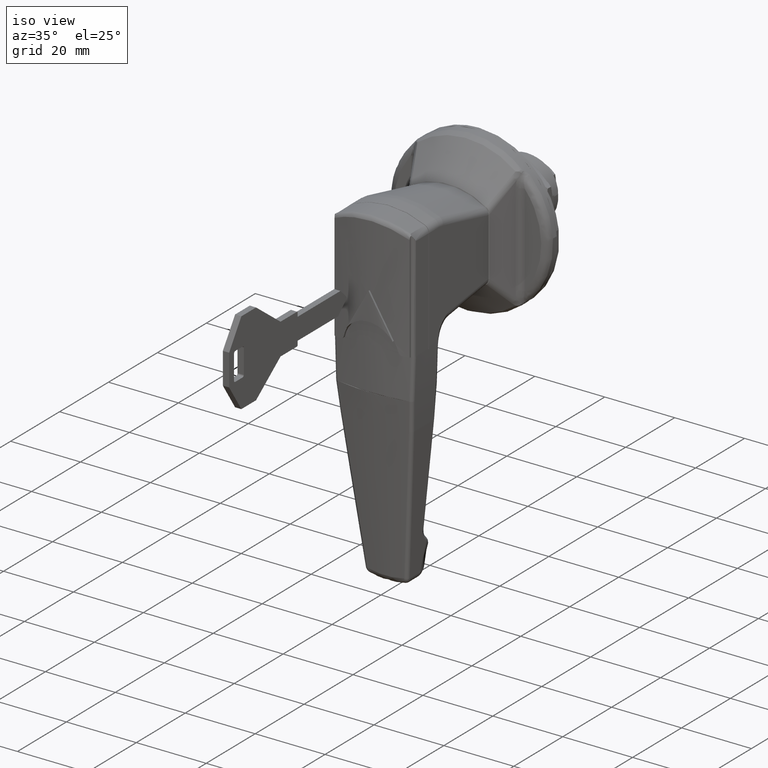
[diagram: clean part render]
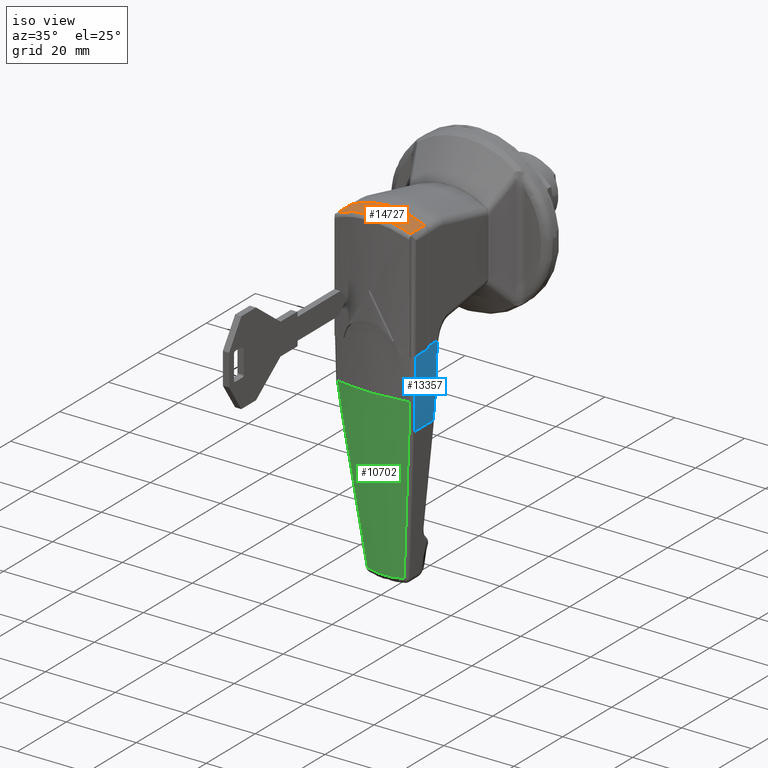
[diagram: same view with three faces highlighted in distinct colors, each labeled with its STEP entity id]
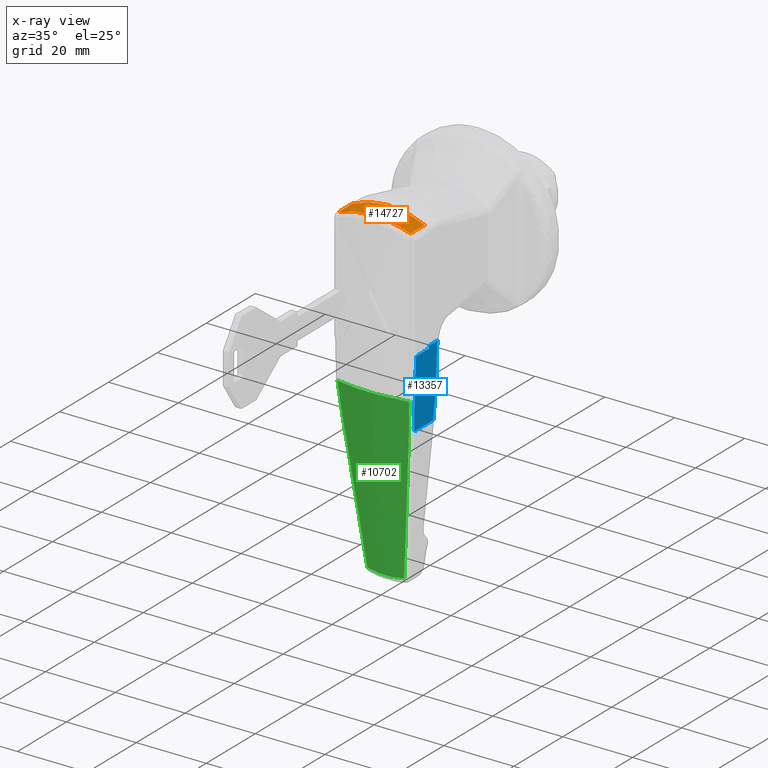
[diagram: x-ray of the same camera — body ghosted, the three highlighted faces saturated]
A machine part, iso view with three faces highlighted in distinct colors.
The next image is the same camera in x-ray (body ghosted, the three faces saturated) — at least one of them is partly hidden behind the body in this view.
Their STEP definitions:

[orange] entity #14727 — the highlighted face is a freeform B-spline surface patch.
#13914=CARTESIAN_POINT('',(-42.665228107918949,10.363636292673020,14.647056215411800));
#13915=VERTEX_POINT('',#13914);
#14001=CARTESIAN_POINT('',(-42.665228107688051,-10.363636357722740,14.647056351284499));
#14002=VERTEX_POINT('',#14001);
#14016=CARTESIAN_POINT('',(-42.665228107918949,10.363636292673020,14.647056215411780));
#14017=CARTESIAN_POINT('',(-42.796096962083098,9.557011230146461,15.033231993281669));
#14018=CARTESIAN_POINT('',(-42.913761288571763,8.734930248536616,15.371572125689131));
#14019=CARTESIAN_POINT('',(-43.119575944880047,7.060287476895181,15.955142921909861));
#14020=CARTESIAN_POINT('',(-43.207735024776682,6.207724823062814,16.200367558185469));
#14021=CARTESIAN_POINT('',(-43.315459357698543,4.905525507268409,16.497532744439120));
#14022=CARTESIAN_POINT('',(-43.347280300663130,4.467558159067115,16.584781314712270));
#14023=CARTESIAN_POINT('',(-43.388560136737318,3.804614229315083,16.697577027155361));
#14024=CARTESIAN_POINT('',(-43.401244620117751,3.582633520411606,16.732160837213460));
#14025=CARTESIAN_POINT('',(-43.424406388240470,3.136642360627634,16.795213712981479));
#14026=CARTESIAN_POINT('',(-43.434893245583083,2.912332395886084,16.823708681706311));
#14027=CARTESIAN_POINT('',(-43.481395581174922,1.792754220779051,16.949915191138668));
#14028=CARTESIAN_POINT('',(-43.499900732128282,0.899028342212307,16.999732033031911));
#14029=CARTESIAN_POINT('',(-43.500098471655747,-0.884663947616848,17.000265817636802));
#14030=CARTESIAN_POINT('',(-43.481789877846488,-1.774630083290208,16.950974940475369));
#14031=CARTESIAN_POINT('',(-43.426989658006491,-3.106747978893304,16.802263445491860));
#14032=CARTESIAN_POINT('',(-43.404165121402947,-3.550314419307753,16.740201842186710));
#14033=CARTESIAN_POINT('',(-43.363112662337187,-4.214944255388948,16.628049515774610));
#14034=CARTESIAN_POINT('',(-43.348281407087264,-4.436519988955471,16.587456431212889));
#14035=CARTESIAN_POINT('',(-43.316396976862791,-4.878772631451303,16.499965704599848));
#14036=CARTESIAN_POINT('',(-43.299393981306480,-5.098777501835253,16.453205722575252));
#14037=CARTESIAN_POINT('',(-43.209226271936117,-6.193273262757894,16.204517171257969));
#14038=CARTESIAN_POINT('',(-43.120616144240472,-7.051228946870860,15.958070939316499));
#14039=CARTESIAN_POINT('',(-42.914067115049711,-8.733032769073853,15.372460516674529));
#14040=CARTESIAN_POINT('',(-42.796118356716690,-9.556879362003587,15.033295125878981));
#14041=CARTESIAN_POINT('',(-42.665228107688051,-10.363636357722740,14.647056351284499));
#14042=B_SPLINE_CURVE_WITH_KNOTS('',3,(#14016,#14017,#14018,#14019,#14020,#14021,#14022,#14023,#14024,#14025,#14026,#14027,#14028,#14029,#14030,#14031,#14032,#14033,#14034,#14035,#14036,#14037,#14038,#14039,#14040,#14041),.UNSPECIFIED.,.F.,.U.,(4,2,2,2,2,2,2,2,2,2,2,2,4),(0.0,0.125000000000000,0.250000000000001,0.312500000000001,0.343750000000001,0.375000000000001,0.500000000000000,0.625000000000000,0.687500000000000,0.718750000000000,0.750000000000000,0.875000000000000,1.0),.UNSPECIFIED.);
#14043=EDGE_CURVE('',#13915,#14002,#14042,.T.);
#14612=CARTESIAN_POINT('',(-36.799999999999997,10.363636292673020,14.647056215411800));
#14613=VERTEX_POINT('',#14612);
#14627=CARTESIAN_POINT('',(-36.799999999999997,-10.363636357722740,14.647056351284499));
#14628=VERTEX_POINT('',#14627);
#14629=CARTESIAN_POINT('',(-36.799999999999997,-10.363636357722740,14.647056351284499));
#14630=CARTESIAN_POINT('',(-36.799999999999997,1.214306E-014,19.608698858088633));
#14631=CARTESIAN_POINT('',(-36.799999999999997,10.363636292673011,14.647056215411791));
#14639=(BOUNDED_CURVE()B_SPLINE_CURVE(2,(#14629,#14630,#14631),.UNSPECIFIED.,.F.,.U.)CURVE()GEOMETRIC_REPRESENTATION_ITEM()QUASI_UNIFORM_CURVE()RATIONAL_B_SPLINE_CURVE((1.0,0.901960675642151,1.0))REPRESENTATION_ITEM(''));
#14640=EDGE_CURVE('',#14628,#14613,#14639,.T.);
#14694=CARTESIAN_POINT('',(-42.665228107918949,10.363636292673020,14.647056215411800));
#14695=CARTESIAN_POINT('',(-36.799999999999997,10.363636292673020,14.647056215411800));
#14696=QUASI_UNIFORM_CURVE('',1,(#14694,#14695),.UNSPECIFIED.,.F.,.U.);
#14697=EDGE_CURVE('',#13915,#14613,#14696,.T.);
#14703=CARTESIAN_POINT('',(-43.667500000185370,-11.281369016901149,14.183264930234651));
#14704=CARTESIAN_POINT('',(-36.628312499995360,-11.281369016901149,14.183264930234651));
#14705=CARTESIAN_POINT('',(-43.667500000185385,0.002014317077740,20.192348589859130));
#14706=CARTESIAN_POINT('',(-36.628312499995346,0.002014317077740,20.192348589859130));
#14707=CARTESIAN_POINT('',(-43.667500000185385,11.284507262102766,14.181593326554944));
#14708=CARTESIAN_POINT('',(-36.628312499995360,11.284507262102766,14.181593326554944));
#14716=(BOUNDED_SURFACE()B_SPLINE_SURFACE(1,2,((#14703,#14705,#14707),(#14704,#14706,#14708)),.UNSPECIFIED.,.F.,.F.,.U.)B_SPLINE_SURFACE_WITH_KNOTS((2,2),(3,3),(0.0,7.039187500190022),(0.0,23.973061051881970),.UNSPECIFIED.)GEOMETRIC_REPRESENTATION_ITEM()RATIONAL_B_SPLINE_SURFACE(((0.999800707454704,0.880839293197323,0.996209953866771),(0.999800707454704,0.880839293197323,0.996209953866771)))REPRESENTATION_ITEM('')SURFACE());
#14717=ORIENTED_EDGE('',*,*,#14697,.F.);
#14718=ORIENTED_EDGE('',*,*,#14043,.T.);
#14719=CARTESIAN_POINT('',(-42.665228107688051,-10.363636357722740,14.647056351284499));
#14720=CARTESIAN_POINT('',(-36.799999999999997,-10.363636357722740,14.647056351284499));
#14721=QUASI_UNIFORM_CURVE('',1,(#14719,#14720),.UNSPECIFIED.,.F.,.U.);
#14722=EDGE_CURVE('',#14002,#14628,#14721,.T.);
#14723=ORIENTED_EDGE('',*,*,#14722,.T.);
#14724=ORIENTED_EDGE('',*,*,#14640,.T.);
#14725=EDGE_LOOP('',(#14717,#14718,#14723,#14724));
#14726=FACE_OUTER_BOUND('',#14725,.T.);
#14727=ADVANCED_FACE('',(#14726),#14716,.T.);

[blue] entity #13357 — the highlighted face is a freeform B-spline surface patch.
#7258=CARTESIAN_POINT('',(-33.330451468540403,-11.500000000000000,-16.269321783101098));
#7259=VERTEX_POINT('',#7258);
#7353=CARTESIAN_POINT('',(-33.500000000000000,-11.493947955351921,-17.825207778918749));
#7354=VERTEX_POINT('',#7353);
#7379=CARTESIAN_POINT('',(-33.500000000000000,-11.493947955351921,-17.825207778918749));
#7380=CARTESIAN_POINT('',(-33.500000000000007,-11.495989259155040,-17.562818113056370));
#7381=CARTESIAN_POINT('',(-33.471380503636198,-11.499015039821611,-17.041153403886771));
#7382=CARTESIAN_POINT('',(-33.386903754290159,-11.500000000000000,-16.525567651724909));
#7383=CARTESIAN_POINT('',(-33.330451468540403,-11.500000000000000,-16.269321783101098));
#7384=B_SPLINE_CURVE_WITH_KNOTS('',3,(#7379,#7380,#7381,#7382,#7383),.UNSPECIFIED.,.F.,.U.,(4,1,4),(0.0,0.500000000000000,1.0),.UNSPECIFIED.);
#7385=EDGE_CURVE('',#7354,#7259,#7384,.T.);
#7407=CARTESIAN_POINT('',(-33.500000000000000,-10.414127563133260,-37.082054803959750));
#7408=VERTEX_POINT('',#7407);
#7440=CARTESIAN_POINT('',(-33.500000000000000,-10.414127563133290,-37.082054803959849));
#7441=CARTESIAN_POINT('',(-33.500000000000000,-11.418839276313740,-27.479694860195792));
#7442=CARTESIAN_POINT('',(-33.500000000000000,-11.493947955351940,-17.825207778918820));
#7450=(BOUNDED_CURVE()B_SPLINE_CURVE(2,(#7440,#7441,#7442),.UNSPECIFIED.,.F.,.U.)CURVE()GEOMETRIC_REPRESENTATION_ITEM()QUASI_UNIFORM_CURVE()RATIONAL_B_SPLINE_CURVE((1.0,0.998836848009269,1.0))REPRESENTATION_ITEM(''));
#7451=EDGE_CURVE('',#7408,#7354,#7450,.T.);
#9400=CARTESIAN_POINT('',(-42.116530728847152,-11.114617704381320,-28.679172657857048));
#9401=VERTEX_POINT('',#9400);
#9654=CARTESIAN_POINT('',(-41.257534945699298,-10.414127563133260,-37.082054803959750));
#9655=VERTEX_POINT('',#9654);
#9669=CARTESIAN_POINT('',(-42.116530728847202,-11.114617704381320,-28.679172657857048));
#9670=CARTESIAN_POINT('',(-41.820871590158333,-10.940237541178600,-31.484108024465410));
#9671=CARTESIAN_POINT('',(-41.535252136037791,-10.706773203194420,-34.285144272335678));
#9672=CARTESIAN_POINT('',(-41.257534945699298,-10.414127563133260,-37.082054803959750));
#9673=QUASI_UNIFORM_CURVE('',3,(#9669,#9670,#9671,#9672),.UNSPECIFIED.,.F.,.U.);
#9674=EDGE_CURVE('',#9401,#9655,#9673,.T.);
#9727=CARTESIAN_POINT('',(-42.048727962254553,-11.498665268904601,-17.0));
#9728=VERTEX_POINT('',#9727);
#9764=CARTESIAN_POINT('',(-42.048727962254553,-11.498665268904601,-17.0));
#9765=CARTESIAN_POINT('',(-42.050008483444088,-11.491548311091830,-18.948028599196309));
#9766=CARTESIAN_POINT('',(-42.056428566853377,-11.455977651039650,-20.895522772792209));
#9767=CARTESIAN_POINT('',(-42.079226717606453,-11.327932060099020,-24.789433435217990));
#9768=CARTESIAN_POINT('',(-42.095599581770330,-11.235485250468360,-26.734997079235882));
#9769=CARTESIAN_POINT('',(-42.116530728847202,-11.114617704381320,-28.679172657856999));
#9770=B_SPLINE_CURVE_WITH_KNOTS('',3,(#9764,#9765,#9766,#9767,#9768,#9769),.UNSPECIFIED.,.F.,.U.,(4,2,4),(0.0,0.500000000000000,1.0),.UNSPECIFIED.);
#9771=EDGE_CURVE('',#9728,#9401,#9770,.T.);
#12581=CARTESIAN_POINT('',(-36.799999999999997,-11.500000000000000,-16.269321783101098));
#12582=VERTEX_POINT('',#12581);
#12659=CARTESIAN_POINT('',(-36.799999999999997,-11.498665268904601,-17.0));
#12660=VERTEX_POINT('',#12659);
#12666=CARTESIAN_POINT('',(-36.799999999999997,-11.500000000000011,-16.269321783101049));
#12667=CARTESIAN_POINT('',(-36.799999999999997,-11.500000000000012,-16.634662110627168));
#12668=CARTESIAN_POINT('',(-36.799999999999997,-11.498665268904610,-16.999999999999972));
#12676=(BOUNDED_CURVE()B_SPLINE_CURVE(2,(#12666,#12667,#12668),.UNSPECIFIED.,.F.,.U.)CURVE()GEOMETRIC_REPRESENTATION_ITEM()QUASI_UNIFORM_CURVE()RATIONAL_B_SPLINE_CURVE((1.0,0.999998331584739,1.0))REPRESENTATION_ITEM(''));
#12677=EDGE_CURVE('',#12582,#12660,#12676,.T.);
#12701=CARTESIAN_POINT('',(-42.048727962254553,-11.498665268904601,-17.0));
#12702=CARTESIAN_POINT('',(-36.799999999999997,-11.498665268904601,-17.0));
#12703=QUASI_UNIFORM_CURVE('',1,(#12701,#12702),.UNSPECIFIED.,.F.,.U.);
#12704=EDGE_CURVE('',#9728,#12660,#12703,.T.);
#13325=CARTESIAN_POINT('',(-33.110799487032736,-11.497293751227351,-15.228892936301458));
#13326=CARTESIAN_POINT('',(-42.341673548617202,-11.497293751227351,-15.228892936301458));
#13327=CARTESIAN_POINT('',(-33.110799487032736,-11.557007898925113,-26.707494260117333));
#13328=CARTESIAN_POINT('',(-42.341673548617194,-11.557007898925113,-26.707494260117333));
#13329=CARTESIAN_POINT('',(-33.110799487032736,-10.303055211442135,-38.117553716057834));
#13330=CARTESIAN_POINT('',(-42.341673548617209,-10.303055211442135,-38.117553716057834));
#13338=(BOUNDED_SURFACE()B_SPLINE_SURFACE(1,2,((#13325,#13327,#13329),(#13326,#13328,#13330)),.UNSPECIFIED.,.F.,.F.,.U.)B_SPLINE_SURFACE_WITH_KNOTS((2,2),(3,3),(0.0,9.230874061584473),(0.705935721510649,23.646369333153960),.UNSPECIFIED.)GEOMETRIC_REPRESENTATION_ITEM()RATIONAL_B_SPLINE_SURFACE(((0.999864642161164,0.997715844505682,0.998851124018511),(0.999864642161164,0.997715844505682,0.998851124018511)))REPRESENTATION_ITEM('')SURFACE());
#13339=ORIENTED_EDGE('',*,*,#7451,.T.);
#13340=ORIENTED_EDGE('',*,*,#7385,.T.);
#13341=CARTESIAN_POINT('',(-33.330451468540403,-11.500000000000000,-16.269321783101098));
#13342=CARTESIAN_POINT('',(-36.799999999999997,-11.500000000000000,-16.269321783101098));
#13343=QUASI_UNIFORM_CURVE('',1,(#13341,#13342),.UNSPECIFIED.,.F.,.U.);
#13344=EDGE_CURVE('',#7259,#12582,#13343,.T.);
#13345=ORIENTED_EDGE('',*,*,#13344,.T.);
#13346=ORIENTED_EDGE('',*,*,#12677,.T.);
#13347=ORIENTED_EDGE('',*,*,#12704,.F.);
#13348=ORIENTED_EDGE('',*,*,#9771,.T.);
#13349=ORIENTED_EDGE('',*,*,#9674,.T.);
#13350=CARTESIAN_POINT('',(-33.500000000000000,-10.414127563133260,-37.082054803959750));
#13351=CARTESIAN_POINT('',(-41.257534945699298,-10.414127563133260,-37.082054803959750));
#13352=QUASI_UNIFORM_CURVE('',1,(#13350,#13351),.UNSPECIFIED.,.F.,.U.);
#13353=EDGE_CURVE('',#7408,#9655,#13352,.T.);
#13354=ORIENTED_EDGE('',*,*,#13353,.F.);
#13355=EDGE_LOOP('',(#13339,#13340,#13345,#13346,#13347,#13348,#13349,#13354));
#13356=FACE_OUTER_BOUND('',#13355,.T.);
#13357=ADVANCED_FACE('',(#13356),#13338,.T.);

[green] entity #10702 — the highlighted face is a freeform B-spline surface patch.
#8363=CARTESIAN_POINT('',(-38.040394911746851,5.262569912004130,-77.661544055874401));
#8364=VERTEX_POINT('',#8363);
#8590=CARTESIAN_POINT('',(-38.040394911746851,-5.262569912004159,-77.661544055874401));
#8591=VERTEX_POINT('',#8590);
#8599=CARTESIAN_POINT('',(-38.040394911746802,5.262569912004140,-77.661544055874401));
#8600=CARTESIAN_POINT('',(-38.094944352277672,4.396627740137308,-77.851686122987218));
#8601=CARTESIAN_POINT('',(-38.136508382503017,3.525064937005375,-77.993876781169902));
#8602=CARTESIAN_POINT('',(-38.192308116948887,1.770842224431224,-78.184077441707686));
#8603=CARTESIAN_POINT('',(-38.206547397284091,0.888085676870435,-78.232087120357590));
#8604=CARTESIAN_POINT('',(-38.206544319635448,-0.888373798360988,-78.232076706414730));
#8605=CARTESIAN_POINT('',(-38.192305068274699,-1.770961786206539,-78.184067088009215));
#8606=CARTESIAN_POINT('',(-38.136506865115102,-3.525088920384993,-77.993871570848071));
#8607=CARTESIAN_POINT('',(-38.094944336115397,-4.396627996704107,-77.851686066650757));
#8608=CARTESIAN_POINT('',(-38.040394911746802,-5.262569912004170,-77.661544055874401));
#8609=B_SPLINE_CURVE_WITH_KNOTS('',3,(#8599,#8600,#8601,#8602,#8603,#8604,#8605,#8606,#8607,#8608),.UNSPECIFIED.,.F.,.U.,(4,2,2,2,4),(0.0,0.250000000000000,0.500000000000000,0.750000000000000,1.0),.UNSPECIFIED.);
#8610=EDGE_CURVE('',#8364,#8591,#8609,.T.);
#9257=CARTESIAN_POINT('',(-43.095065097516503,-10.288011473755381,-28.731445780891249));
#9258=VERTEX_POINT('',#9257);
#9289=CARTESIAN_POINT('',(-43.095065097516503,10.288011473755340,-28.731445780891249));
#9290=VERTEX_POINT('',#9289);
#9304=CARTESIAN_POINT('',(-43.095065097516503,-10.288011473755381,-28.731445780891249));
#9305=CARTESIAN_POINT('',(-44.885435057690287,2.602085E-014,-28.837413335216311));
#9306=CARTESIAN_POINT('',(-43.095065097516503,10.288011473755340,-28.731445780891249));
#9314=(BOUNDED_CURVE()B_SPLINE_CURVE(2,(#9304,#9305,#9306),.UNSPECIFIED.,.F.,.U.)CURVE()GEOMETRIC_REPRESENTATION_ITEM()QUASI_UNIFORM_CURVE()RATIONAL_B_SPLINE_CURVE((1.0,0.985189888622137,1.0))REPRESENTATION_ITEM(''));
#9315=EDGE_CURVE('',#9258,#9290,#9314,.T.);
#9571=CARTESIAN_POINT('',(-42.238039142244901,9.579210432526370,-37.092543651671150));
#9572=VERTEX_POINT('',#9571);
#9586=CARTESIAN_POINT('',(-43.095065097516503,10.288011473755340,-28.731445780891249));
#9587=CARTESIAN_POINT('',(-42.799897446541252,10.111552297445670,-31.522575555672489));
#9588=CARTESIAN_POINT('',(-42.514947659635631,9.875311148400652,-34.309684740056881));
#9589=CARTESIAN_POINT('',(-42.238039142244901,9.579210432526391,-37.092543651671150));
#9590=QUASI_UNIFORM_CURVE('',3,(#9586,#9587,#9588,#9589),.UNSPECIFIED.,.F.,.U.);
#9591=EDGE_CURVE('',#9290,#9572,#9590,.T.);
#9652=CARTESIAN_POINT('',(-42.238039142244901,-9.579210432526381,-37.092543651671249));
#9653=VERTEX_POINT('',#9652);
#9677=CARTESIAN_POINT('',(-42.238039142244901,-9.579210432526381,-37.092543651671249));
#9678=CARTESIAN_POINT('',(-42.514947659635631,-9.875311148400646,-34.309684740056937));
#9679=CARTESIAN_POINT('',(-42.799897446541252,-10.111552297445691,-31.522575555672528));
#9680=CARTESIAN_POINT('',(-43.095065097516503,-10.288011473755359,-28.731445780891249));
#9681=QUASI_UNIFORM_CURVE('',3,(#9677,#9678,#9679,#9680),.UNSPECIFIED.,.F.,.U.);
#9682=EDGE_CURVE('',#9653,#9258,#9681,.T.);
#9810=CARTESIAN_POINT('',(-42.238039142244901,9.579210432526370,-37.092543651671150));
#9811=CARTESIAN_POINT('',(-40.228745358728069,7.430654897625610,-57.285425994906383));
#9812=CARTESIAN_POINT('',(-38.040394911746823,5.262569912004132,-77.661544055874430));
#9820=(BOUNDED_CURVE()B_SPLINE_CURVE(2,(#9810,#9811,#9812),.UNSPECIFIED.,.F.,.U.)CURVE()GEOMETRIC_REPRESENTATION_ITEM()QUASI_UNIFORM_CURVE()RATIONAL_B_SPLINE_CURVE((1.0,0.999342727148910,1.0))REPRESENTATION_ITEM(''));
#9821=EDGE_CURVE('',#9572,#8364,#9820,.T.);
#9847=CARTESIAN_POINT('',(-38.040394911746873,-5.262569912004184,-77.661544055874444));
#9848=CARTESIAN_POINT('',(-40.228745358728077,-7.430654897625606,-57.285425994906866));
#9849=CARTESIAN_POINT('',(-42.238039142244972,-9.579210432526391,-37.092543651671257));
#9857=(BOUNDED_CURVE()B_SPLINE_CURVE(2,(#9847,#9848,#9849),.UNSPECIFIED.,.F.,.U.)CURVE()GEOMETRIC_REPRESENTATION_ITEM()QUASI_UNIFORM_CURVE()RATIONAL_B_SPLINE_CURVE((1.0,0.999342727148501,1.0))REPRESENTATION_ITEM(''));
#9858=EDGE_CURVE('',#8591,#9653,#9857,.T.);
#10680=CARTESIAN_POINT('',(-43.062144150839551,11.296936232933927,-27.423309234517994));
#10681=CARTESIAN_POINT('',(-36.992656345278135,11.296936232933927,-79.374664276426202));
#10682=CARTESIAN_POINT('',(-45.213516695617265,-0.001345022825566,-27.674654544283531));
#10683=CARTESIAN_POINT('',(-39.144028890055843,-0.001345022825566,-79.626009586191742));
#10684=CARTESIAN_POINT('',(-43.061650027261180,-11.299530893988612,-27.423251505955736));
#10685=CARTESIAN_POINT('',(-36.992162221699751,-11.299530893988612,-79.374606547863934));
#10693=(BOUNDED_SURFACE()B_SPLINE_SURFACE(1,2,((#10680,#10682,#10684),(#10681,#10683,#10685)),.UNSPECIFIED.,.F.,.F.,.U.)B_SPLINE_SURFACE_WITH_KNOTS((2,2),(3,3),(0.0,52.304703162452427),(0.0,22.800397113671931),.UNSPECIFIED.)GEOMETRIC_REPRESENTATION_ITEM()RATIONAL_B_SPLINE_SURFACE(((0.998460209570932,0.979279257773243,0.995775338753416),(0.998460209570932,0.979279257773243,0.995775338753416)))REPRESENTATION_ITEM('')SURFACE());
#10694=ORIENTED_EDGE('',*,*,#9821,.T.);
#10695=ORIENTED_EDGE('',*,*,#8610,.T.);
#10696=ORIENTED_EDGE('',*,*,#9858,.T.);
#10697=ORIENTED_EDGE('',*,*,#9682,.T.);
#10698=ORIENTED_EDGE('',*,*,#9315,.T.);
#10699=ORIENTED_EDGE('',*,*,#9591,.T.);
#10700=EDGE_LOOP('',(#10694,#10695,#10696,#10697,#10698,#10699));
#10701=FACE_OUTER_BOUND('',#10700,.T.);
#10702=ADVANCED_FACE('',(#10701),#10693,.T.);